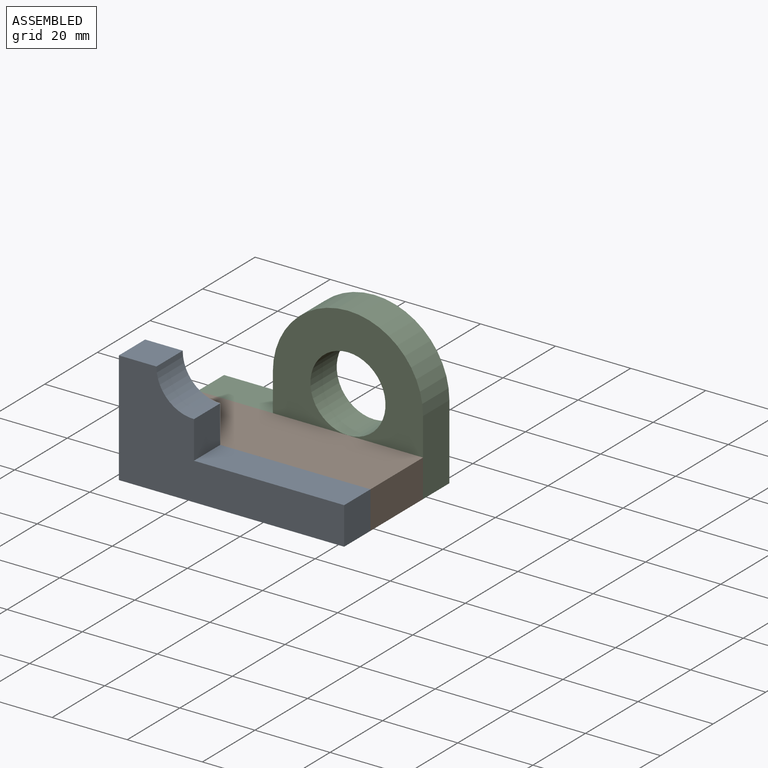
[diagram: assembled view]
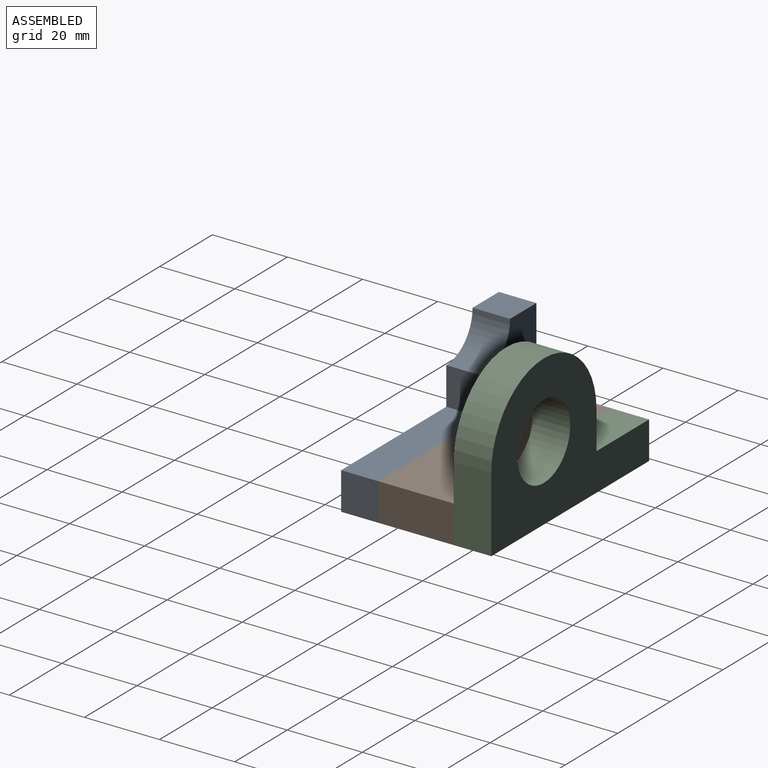
[diagram: assembled view, second angle]
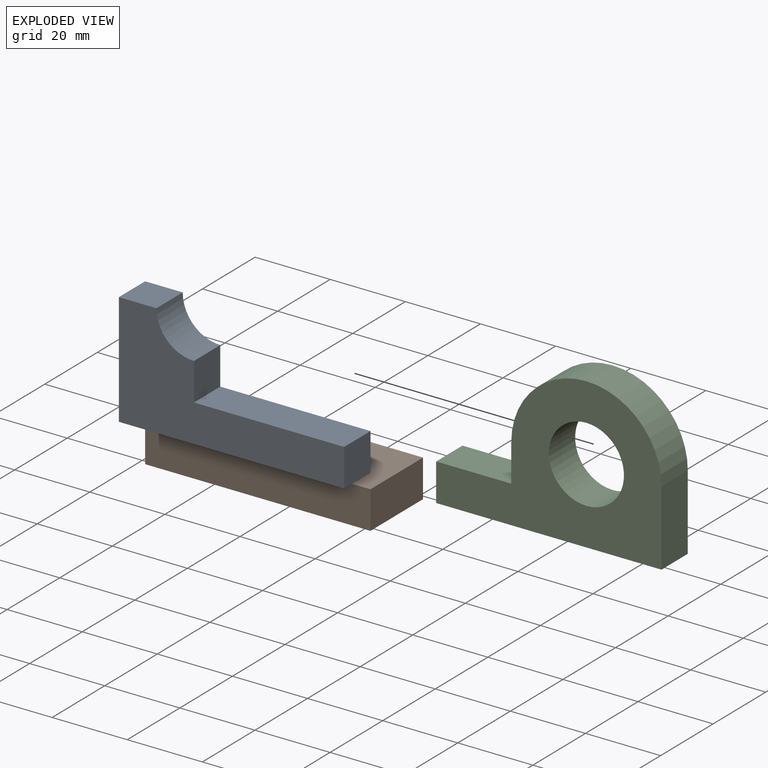
[diagram: exploded view]
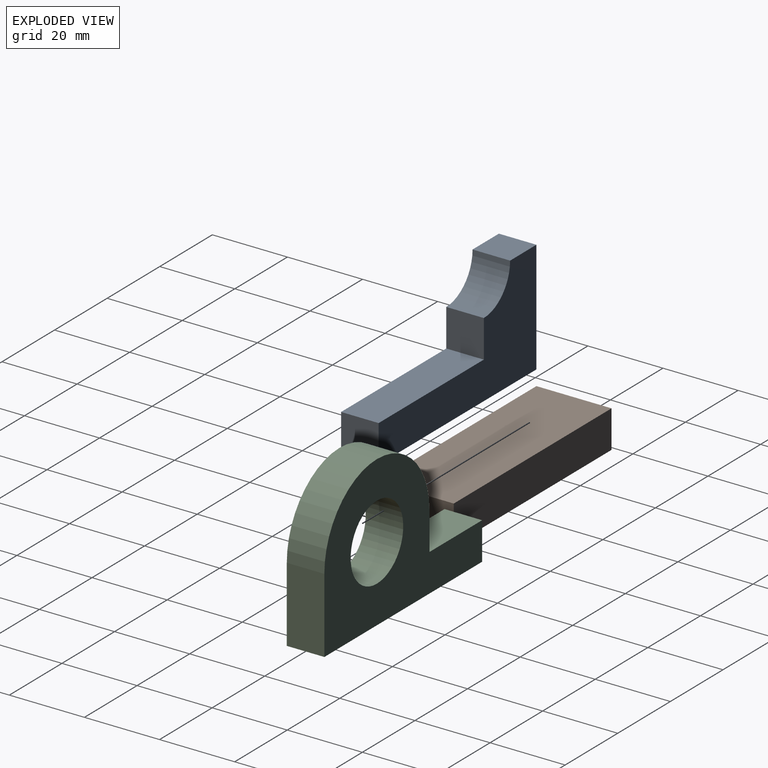
[diagram: exploded view, second angle]
ASSEMBLY  parts=3 mates=2
PART A: 9 faces, bbox 60x10x30 mm
  f0: plane 10x10mm, normal (0,0,1), area 100mm2, adj f1,f6,f7,f8
  f1: plane 30x10mm, normal (-1,0,0), area 300mm2, adj f0,f2,f7,f8
  f2: plane 60x10mm, normal (0,0,-1), area 600mm2, adj f1,f3,f7,f8
  f3: plane 10x10mm, normal (1,0,0), area 100mm2, adj f2,f4,f7,f8
  f4: plane 40x10mm, normal (0,0,1), area 400mm2, adj f3,f5,f7,f8
  f5: plane 10x10mm, normal (1,0,0), area 100mm2, adj f4,f6,f7,f8
  f6: cylinder r=10mm len=10mm, axis (0,1,0), area 157.1mm2, adj f0,f5,f7,f8
  f7: plane 60x30mm, normal (0,-1,0), area 921.5mm2, adj f0,f1,f2,f3,f4,f5,f6
  f8: plane 60x30mm, normal (0,1,0), area 921.5mm2, adj f0,f1,f2,f3,f4,f5,f6
PART B: 6 faces, bbox 60x20x10 mm
  f0: plane 60x10mm, normal (0,1,0), area 600mm2, adj f1,f3,f4,f5
  f1: plane 20x10mm, normal (-1,0,0), area 200mm2, adj f0,f2,f4,f5
  f2: plane 60x10mm, normal (0,-1,0), area 600mm2, adj f1,f3,f4,f5
  f3: plane 20x10mm, normal (1,0,0), area 200mm2, adj f0,f2,f4,f5
  f4: plane 60x20mm, normal (0,0,1), area 1200mm2, adj f0,f1,f2,f3
  f5: plane 60x20mm, normal (0,0,-1), area 1200mm2, adj f0,f1,f2,f3
PART C: 9 faces, bbox 60x10x40 mm
  f0: plane 10x10mm, normal (-1,0,0), area 100mm2, adj f1,f6,f7,f8
  f1: plane 20x10mm, normal (0,0,1), area 200mm2, adj f0,f2,f7,f8
  f2: plane 10x10mm, normal (-1,0,0), area 100mm2, adj f1,f3,f7,f8
  f3: plane 60x10mm, normal (0,0,-1), area 600mm2, adj f2,f4,f7,f8
  f4: plane 20x10mm, normal (1,0,0), area 200mm2, adj f3,f6,f7,f8
  f5: cylinder r=10mm len=20mm, axis (0,1,0), area 628.3mm2, adj f7,f8
  f6: cylinder r=20mm len=40mm, axis (0,1,0), area 628.3mm2, adj f0,f4,f7,f8
  f7: plane 60x40mm, normal (0,-1,0), area 1314.2mm2, adj f0,f1,f2,f3,f4,f5,f6
  f8: plane 60x40mm, normal (0,1,0), area 1314.2mm2, adj f0,f1,f2,f3,f4,f5,f6
PLACE A t=(-8.72,-23.46,25.64)mm
PLACE B t=(-26.23,-12.11,-1.95)mm
PLACE C t=(-24.73,6.54,-1.15)mm
MATE fastened C.f2 <-> B.f1  axis (-1,0,0) through (-56.83,-3.46,8.05)mm
MATE fastened A.f4 <-> B.f4  axis (0,0,1) through (3.17,-23.46,8.05)mm
